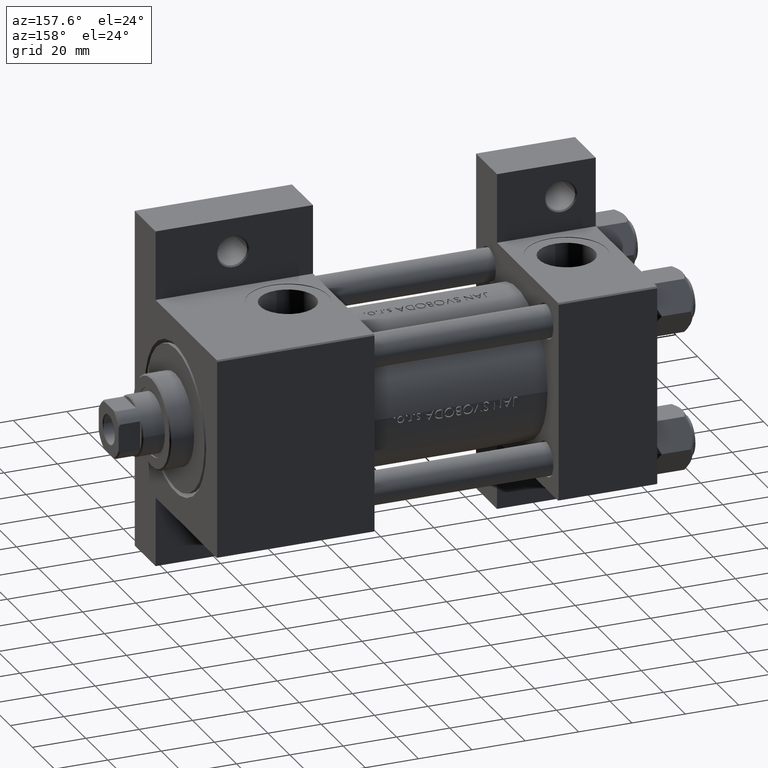
[diagram: clean part render]
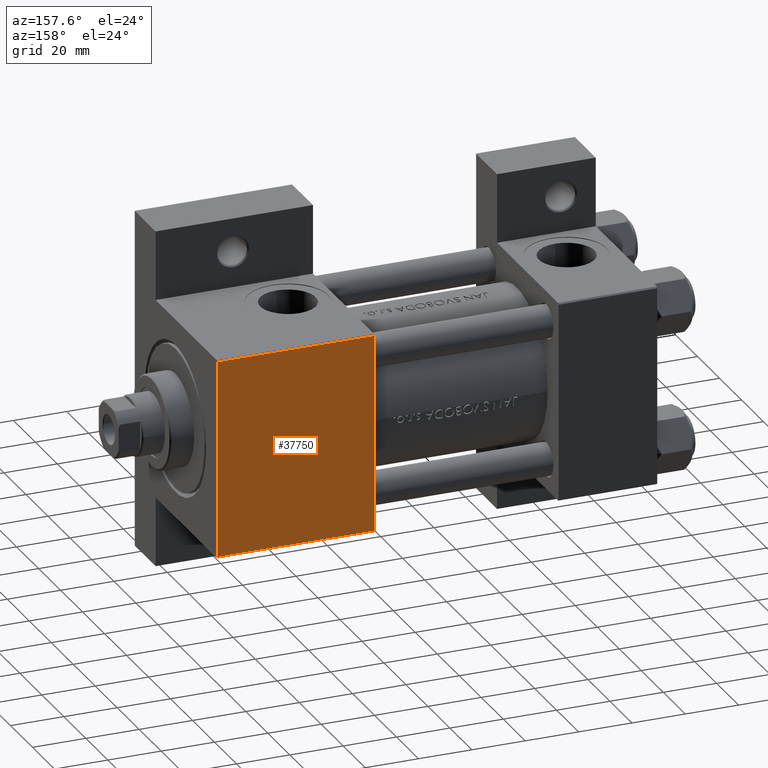
[diagram: same view with one face highlighted and labeled with its STEP entity id]
A machine part, auxiliary view. The second image highlights one B-rep face of the part: STEP entity #37750.
In plain terms, the highlighted planar face has unit normal (0, -1, -0).
Its self-contained STEP definition (entity closure, byte-faithful):
#162 = CARTESIAN_POINT ( 'NONE',  ( 165.0000000000000000, -37.00000000000000000, 37.49999999999997868 ) ) ;
#512 = LINE ( 'NONE', #35116, #29934 ) ;
#2020 = CARTESIAN_POINT ( 'NONE',  ( 106.0000000000000142, 37.50000000000000000, 37.49999999999999289 ) ) ;
#4659 = EDGE_LOOP ( 'NONE', ( #5154, #7631, #40301, #44436 ) ) ;
#5154 = ORIENTED_EDGE ( 'NONE', *, *, #12894, .F. ) ;
#7471 = VERTEX_POINT ( 'NONE', #28774 ) ;
#7631 = ORIENTED_EDGE ( 'NONE', *, *, #43170, .T. ) ;
#7808 = DIRECTION ( 'NONE',  ( -1.000000000000000000, 0.000000000000000000, 0.000000000000000000 ) ) ;
#12894 = EDGE_CURVE ( 'NONE', #41127, #41878, #512, .T. ) ;
#14803 = CARTESIAN_POINT ( 'NONE',  ( 106.0000000000000142, 36.99999999999997158, 37.49999999999999289 ) ) ;
#15490 = CARTESIAN_POINT ( 'NONE',  ( 165.0000000000000000, 37.50000000000000000, 37.49999999999999289 ) ) ;
#15724 = CARTESIAN_POINT ( 'NONE',  ( 165.0000000000000000, -37.00000000000000000, 37.49999999999997868 ) ) ;
#17190 = DIRECTION ( 'NONE',  ( 0.000000000000000000, -1.000000000000000000, -1.850371707708594316E-16 ) ) ;
#20934 = LINE ( 'NONE', #2020, #26025 ) ;
#21963 = EDGE_CURVE ( 'NONE', #25082, #41878, #42133, .T. ) ;
#25082 = VERTEX_POINT ( 'NONE', #45662 ) ;
#25971 = FACE_OUTER_BOUND ( 'NONE', #4659, .T. ) ;
#26025 = VECTOR ( 'NONE', #17190, 1000.000000000000000 ) ;
#26136 = VECTOR ( 'NONE', #30909, 1000.000000000000000 ) ;
#27395 = DIRECTION ( 'NONE',  ( 0.000000000000000000, -1.000000000000000000, -1.850371707708594316E-16 ) ) ;
#28774 = CARTESIAN_POINT ( 'NONE',  ( 106.0000000000000142, 36.99999999999997158, 37.49999999999999289 ) ) ;
#29934 = VECTOR ( 'NONE', #27395, 1000.000000000000000 ) ;
#30909 = DIRECTION ( 'NONE',  ( 1.000000000000000000, 0.000000000000000000, 0.000000000000000000 ) ) ;
#32137 = VECTOR ( 'NONE', #7808, 1000.000000000000000 ) ;
#32141 = AXIS2_PLACEMENT_3D ( 'NONE', #15490, #41902, #41167 ) ;
#33727 = LINE ( 'NONE', #14803, #32137 ) ;
#35116 = CARTESIAN_POINT ( 'NONE',  ( 165.0000000000000000, 37.50000000000000000, 37.49999999999999289 ) ) ;
#37750 = ADVANCED_FACE ( 'NONE', ( #25971 ), #45396, .F. ) ;
#40301 = ORIENTED_EDGE ( 'NONE', *, *, #48906, .T. ) ;
#41127 = VERTEX_POINT ( 'NONE', #48928 ) ;
#41167 = DIRECTION ( 'NONE',  ( 0.000000000000000000, 1.000000000000000000, 1.850371707708594316E-16 ) ) ;
#41878 = VERTEX_POINT ( 'NONE', #162 ) ;
#41902 = DIRECTION ( 'NONE',  ( 0.000000000000000000, 1.850371707708594316E-16, -1.000000000000000000 ) ) ;
#42133 = LINE ( 'NONE', #15724, #26136 ) ;
#43170 = EDGE_CURVE ( 'NONE', #41127, #7471, #33727, .T. ) ;
#44436 = ORIENTED_EDGE ( 'NONE', *, *, #21963, .T. ) ;
#45396 = PLANE ( 'NONE',  #32141 ) ;
#45662 = CARTESIAN_POINT ( 'NONE',  ( 106.0000000000000142, -37.00000000000000000, 37.49999999999997868 ) ) ;
#48906 = EDGE_CURVE ( 'NONE', #7471, #25082, #20934, .T. ) ;
#48928 = CARTESIAN_POINT ( 'NONE',  ( 165.0000000000000000, 36.99999999999997158, 37.49999999999999289 ) ) ;